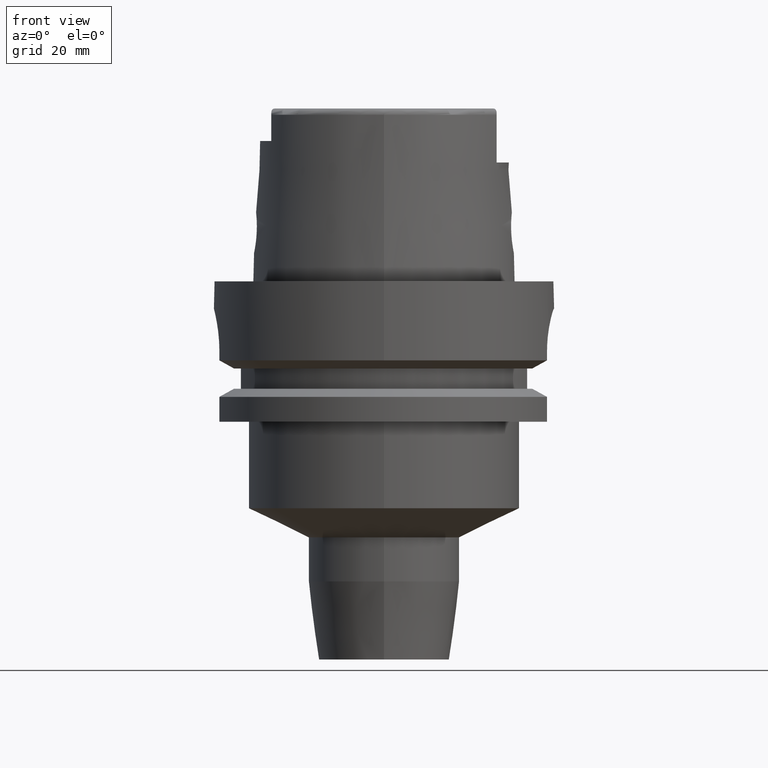
[diagram: clean part render]
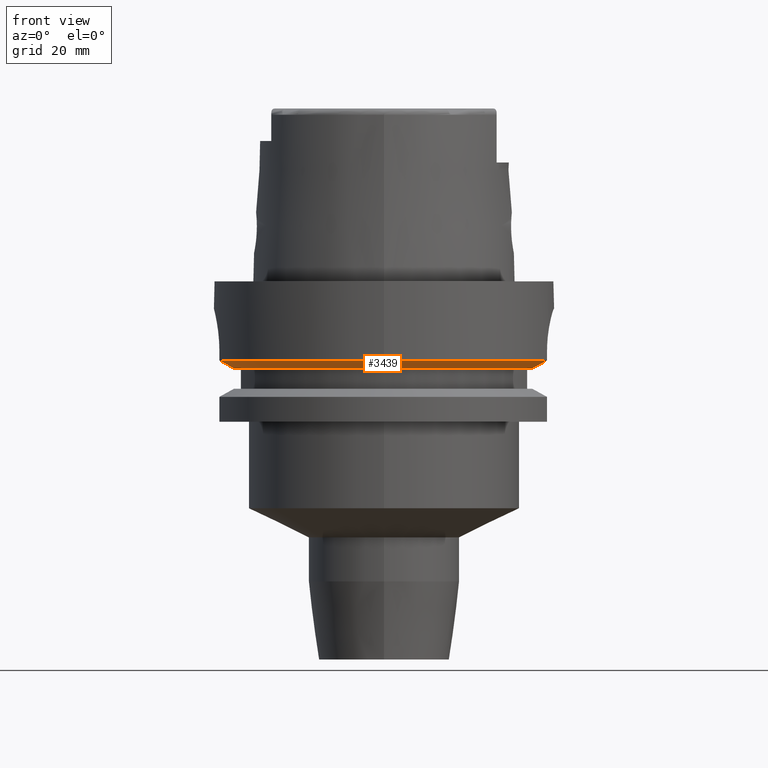
[diagram: same view with one face highlighted and labeled with its STEP entity id]
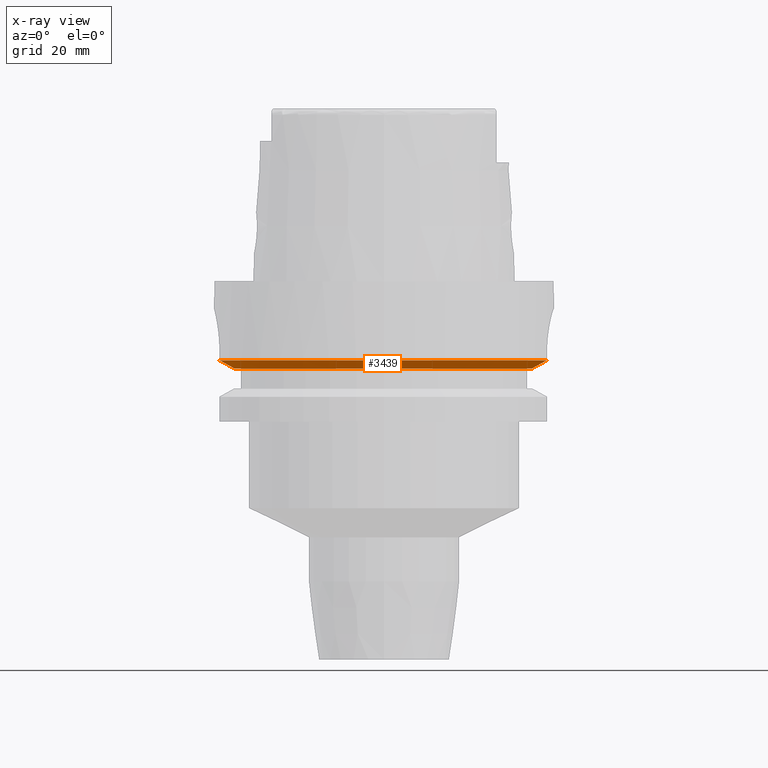
[diagram: x-ray of the same camera — body ghosted, the highlighted face saturated]
A machine part, front view. The second image highlights one B-rep face of the part: STEP entity #3439.
The next image is the same camera in x-ray: the body ghosted, the highlighted face saturated — about 0% of this face is hidden behind the body in this view.
In plain terms, the highlighted conical surface has half-angle 60 deg.
Its self-contained STEP definition (entity closure, byte-faithful):
#920=CARTESIAN_POINT('',(0.E0,0.E0,-1.6125E1));
#921=DIRECTION('',(0.E0,0.E0,1.E0));
#922=DIRECTION('',(-9.609161312155E-1,-2.768396445054E-1,0.E0));
#923=AXIS2_PLACEMENT_3D('',#920,#921,#922);
#928=CARTESIAN_POINT('',(0.E0,0.E0,-1.6125E1));
#929=DIRECTION('',(0.E0,0.E0,1.E0));
#930=DIRECTION('',(0.E0,-1.E0,0.E0));
#931=AXIS2_PLACEMENT_3D('',#928,#929,#930);
#1321=CARTESIAN_POINT('',(-2.776816328370E1,-8.000000140768E0,-1.6125E1));
#1322=CARTESIAN_POINT('',(-2.806112175197E1,-8.000000140768E0,
-1.596247098210E1));
#1323=CARTESIAN_POINT('',(-2.865165079552E1,-7.999999997356E0,
-1.563446130772E1));
#1324=CARTESIAN_POINT('',(-2.955132034038E1,-7.999999798103E0,
-1.513361280267E1));
#1325=CARTESIAN_POINT('',(-3.016035498021E1,-8.000000472856E0,
-1.479384256094E1));
#1326=CARTESIAN_POINT('',(-3.046719534900E1,-8.000000472856E0,
-1.462249663271E1));
#1331=CARTESIAN_POINT('',(0.E0,0.E0,-1.462250092524E1));
#1332=DIRECTION('',(0.E0,0.E0,1.E0));
#1333=DIRECTION('',(-9.672125547036E-1,-2.539682539683E-1,0.E0));
#1334=AXIS2_PLACEMENT_3D('',#1331,#1332,#1333);
#1339=CARTESIAN_POINT('',(0.E0,0.E0,-1.462250092524E1));
#1340=DIRECTION('',(0.E0,0.E0,1.E0));
#1341=DIRECTION('',(0.E0,-1.E0,0.E0));
#1342=AXIS2_PLACEMENT_3D('',#1339,#1340,#1341);
#1347=CARTESIAN_POINT('',(3.018691774062E1,-8.999999851161E0,
-1.462250212566E1));
#1348=CARTESIAN_POINT('',(2.987611131227E1,-8.999999851161E0,
-1.479446614370E1));
#1349=CARTESIAN_POINT('',(2.925973937009E1,-8.999999971694E0,
-1.513506014872E1));
#1350=CARTESIAN_POINT('',(2.835089540503E1,-9.000000322331E0,
-1.563590785656E1));
#1351=CARTESIAN_POINT('',(2.775545824590E1,-8.999999266766E0,
-1.596310065008E1));
#1352=CARTESIAN_POINT('',(2.746036361894E1,-8.999999266766E0,-1.6125E1));
#2495=CARTESIAN_POINT('',(-2.776816328370E1,-8.000000140768E0,-1.6125E1));
#2497=VERTEX_POINT('',#2495);
#2502=CARTESIAN_POINT('',(-3.046719534900E1,-8.000000472856E0,
-1.462249663271E1));
#2503=VERTEX_POINT('',#2502);
#2566=CARTESIAN_POINT('',(2.746036361894E1,-8.999999266766E0,-1.6125E1));
#2567=VERTEX_POINT('',#2566);
#2568=VERTEX_POINT('',#1347);
#2571=CARTESIAN_POINT('',(2.328806397865E-14,-2.889759526419E1,-1.6125E1));
#2572=VERTEX_POINT('',#2571);
#2579=CARTESIAN_POINT('',(0.E0,-3.15E1,-1.462250092524E1));
#2580=VERTEX_POINT('',#2579);
#3425=CARTESIAN_POINT('',(0.E0,0.E0,-1.537375046262E1));
#3426=DIRECTION('',(0.E0,0.E0,1.E0));
#3427=DIRECTION('',(0.E0,1.E0,0.E0));
#3428=AXIS2_PLACEMENT_3D('',#3425,#3426,#3427);
#3429=CONICAL_SURFACE('',#3428,3.019879763210E1,6.E1);
#3430=ORIENTED_EDGE('',*,*,#3136,.T.);
#3431=ORIENTED_EDGE('',*,*,#2992,.T.);
#3433=ORIENTED_EDGE('',*,*,#3432,.T.);
#3434=ORIENTED_EDGE('',*,*,#3415,.T.);
#3435=ORIENTED_EDGE('',*,*,#3151,.F.);
#3436=ORIENTED_EDGE('',*,*,#3149,.F.);
#3437=EDGE_LOOP('',(#3430,#3431,#3433,#3434,#3435,#3436));
#3438=FACE_OUTER_BOUND('',#3437,.F.);
#924=CIRCLE('',#923,2.889759526419E1);
#932=CIRCLE('',#931,2.889759526419E1);
#1327=B_SPLINE_CURVE_WITH_KNOTS('',3,(#1321,#1322,#1323,#1324,#1325,#1326),
.UNSPECIFIED.,.F.,.F.,(4,1,1,4),(0.E0,3.333333333333E-1,6.666666666667E-1,1.E0),
.UNSPECIFIED.);
#1335=CIRCLE('',#1334,3.15E1);
#1343=CIRCLE('',#1342,3.15E1);
#1353=B_SPLINE_CURVE_WITH_KNOTS('',3,(#1347,#1348,#1349,#1350,#1351,#1352),
.UNSPECIFIED.,.F.,.F.,(4,1,1,4),(0.E0,3.333333333333E-1,6.666666666667E-1,1.E0),
.UNSPECIFIED.);
#2992=EDGE_CURVE('',#2503,#2580,#1335,.T.);
#3136=EDGE_CURVE('',#2497,#2503,#1327,.T.);
#3149=EDGE_CURVE('',#2497,#2572,#924,.T.);
#3151=EDGE_CURVE('',#2572,#2567,#932,.T.);
#3415=EDGE_CURVE('',#2568,#2567,#1353,.T.);
#3432=EDGE_CURVE('',#2580,#2568,#1343,.T.);
#3439=ADVANCED_FACE('',(#3438),#3429,.T.);